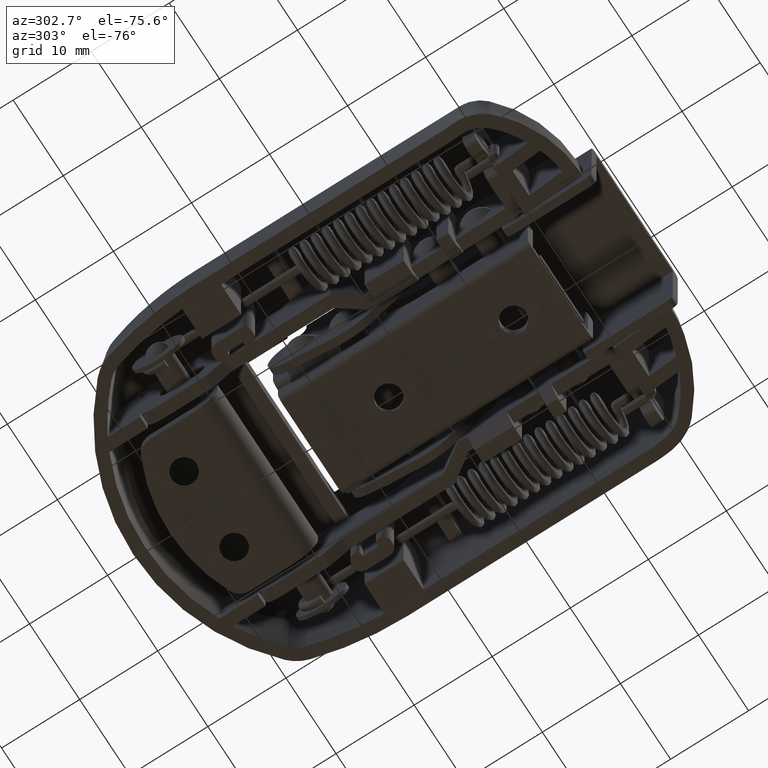
[diagram: clean part render]
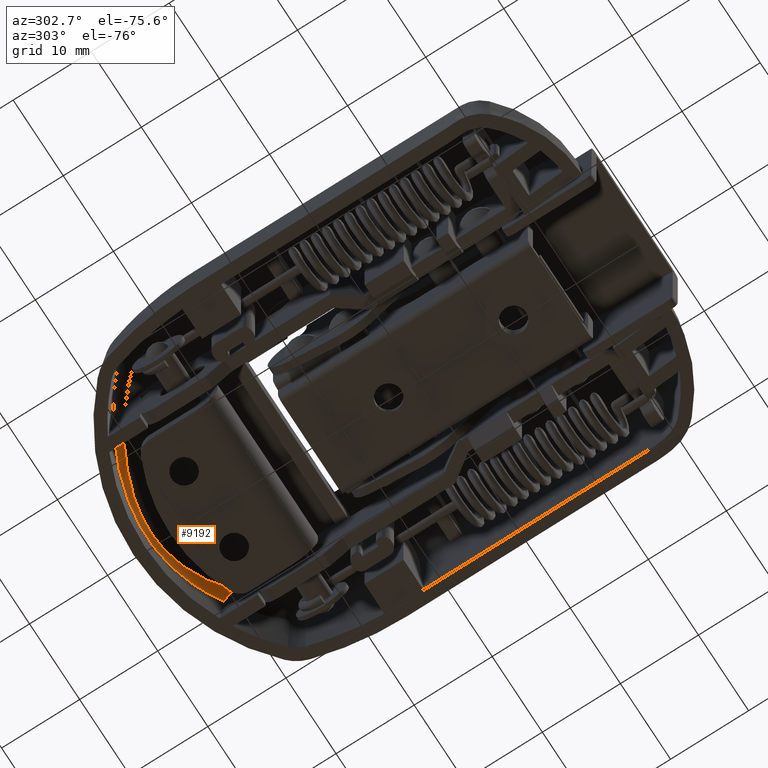
[diagram: same view with one face highlighted and labeled with its STEP entity id]
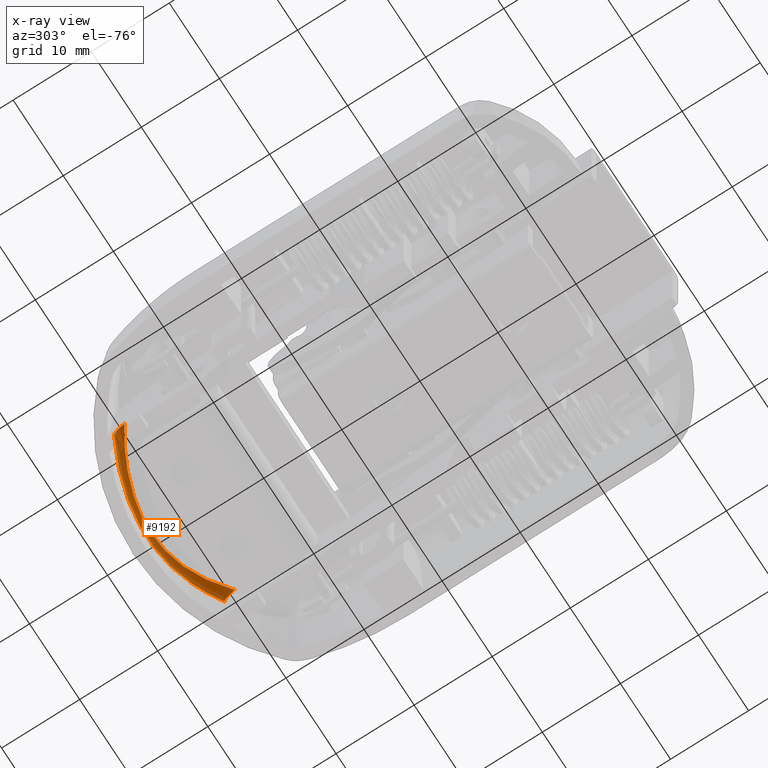
[diagram: x-ray of the same camera — body ghosted, the highlighted face saturated]
A machine part, auxiliary view. The second image highlights one B-rep face of the part: STEP entity #9192.
The next image is the same camera in x-ray: the body ghosted, the highlighted face saturated — about 1% of this face is hidden behind the body in this view.
In plain terms, the highlighted face is a freeform B-spline surface patch.
Its self-contained STEP definition (entity closure, byte-faithful):
#231 = CARTESIAN_POINT ( 'NONE',  ( -7.270980982735626900, 59.15050869956452600, -8.045539297740756300 ) ) ;
#287 = CARTESIAN_POINT ( 'NONE',  ( 0.5218743642224695800, 59.91816782484296800, -9.059311748555972000 ) ) ;
#314 = CARTESIAN_POINT ( 'NONE',  ( -3.906585702392531900, 60.06623565481270800, -9.926526742074838000 ) ) ;
#359 = CARTESIAN_POINT ( 'NONE',  ( 11.00000000000000200, 57.31243456684755700, -6.541334974213405000 ) ) ;
#375 = CARTESIAN_POINT ( 'NONE',  ( -10.61306972115204600, 56.56884765888347700, -5.559508198463396100 ) ) ;
#402 = CARTESIAN_POINT ( 'NONE',  ( 1.026514887088570700, 59.89570203111100000, -9.028745439866241900 ) ) ;
#448 = CARTESIAN_POINT ( 'NONE',  ( -8.892255723528304400, 58.61848155523508600, -8.439931193719054600 ) ) ;
#504 = CARTESIAN_POINT ( 'NONE',  ( 3.740076805229735500, 60.02573388308060500, -9.181711863393683600 ) ) ;
#548 = CARTESIAN_POINT ( 'NONE',  ( 3.432228295030826300, 60.14201421710915700, -10.01585330274831900 ) ) ;
#560 = CARTESIAN_POINT ( 'NONE',  ( -10.99999999999999800, 56.29911971473180200, -5.351454213057219400 ) ) ;
#591 = CARTESIAN_POINT ( 'NONE',  ( 7.600187269600905200, 59.12831898113529400, -8.914791997305059100 ) ) ;
#728 = EDGE_CURVE ( 'NONE', #2612, #17852, #20158, .T. ) ;
#2200 = CARTESIAN_POINT ( 'NONE',  ( -12.33842787173832700, 56.87170163092271500, -7.059679919154015200 ) ) ;
#2259 = CARTESIAN_POINT ( 'NONE',  ( 9.410819536039001700, 57.33364827151172000, -6.198167039632482800 ) ) ;
#2285 = CARTESIAN_POINT ( 'NONE',  ( -5.451607284660392200, 59.07186451616620100, -7.987851965497071700 ) ) ;
#2332 = CARTESIAN_POINT ( 'NONE',  ( 11.00000000000055800, 56.47848897371848400, -5.489810249206502800 ) ) ;
#2348 = CARTESIAN_POINT ( 'NONE',  ( -1.045571550634906100, 59.92387399416514900, -9.067114513104863600 ) ) ;
#2377 = CARTESIAN_POINT ( 'NONE',  ( -2.157167542289998500, 60.25656750359760800, -9.509092032144074800 ) ) ;
#2426 = CARTESIAN_POINT ( 'NONE',  ( 11.00000000000000200, 57.55510123524974400, -7.164092900894720700 ) ) ;
#2468 = CARTESIAN_POINT ( 'NONE',  ( 1.138130795477420900, 60.37091016881561200, -10.29345805061594600 ) ) ;
#2513 = CARTESIAN_POINT ( 'NONE',  ( -6.697307784958028700, 59.41579549317666700, -9.207705909989185100 ) ) ;
#2552 = CARTESIAN_POINT ( 'NONE',  ( 4.017812494141269400, 59.46638355788979200, -8.466845392072246000 ) ) ;
#2598 = CARTESIAN_POINT ( 'NONE',  ( 4.858257828809054300, 59.87859331228295900, -9.711446550446137100 ) ) ;
#2612 = VERTEX_POINT ( 'NONE', #22142 ) ;
#2615 = CARTESIAN_POINT ( 'NONE',  ( -10.99999999999999800, 56.94360027939549700, -5.974575130438419800 ) ) ;
#2649 = CARTESIAN_POINT ( 'NONE',  ( 8.237886098073547100, 58.79920323733949800, -7.634367891429228300 ) ) ;
#4272 = CARTESIAN_POINT ( 'NONE',  ( -11.01496096068613700, 57.52324178733725500, -6.332491646596381000 ) ) ;
#4339 = CARTESIAN_POINT ( 'NONE',  ( 6.865501225361795100, 58.58035950449384200, -7.427918869725302500 ) ) ;
#4369 = CARTESIAN_POINT ( 'NONE',  ( -6.046398258901460200, 59.58925429637583400, -9.393225856330571900 ) ) ;
#4425 = CARTESIAN_POINT ( 'NONE',  ( -3.561094337125323900, 59.56667057569549700, -8.594610733381530900 ) ) ;
#4448 = CARTESIAN_POINT ( 'NONE',  ( -1.026753283651534500, 59.92395018714908900, -9.067218522874185300 ) ) ;
#4486 = CARTESIAN_POINT ( 'NONE',  ( 11.00000000000000000, 57.62837396384011200, -7.613348286697724500 ) ) ;
#4531 = CARTESIAN_POINT ( 'NONE',  ( 1.356635505542658400, 60.29681245811522700, -9.571502791531681700 ) ) ;
#4578 = CARTESIAN_POINT ( 'NONE',  ( -4.849781214768038100, 59.88047339366171700, -9.713558511193166800 ) ) ;
#4618 = CARTESIAN_POINT ( 'NONE',  ( 4.455471641812288800, 59.96379198692259400, -9.807490441475559700 ) ) ;
#4675 = CARTESIAN_POINT ( 'NONE',  ( 6.716008770717152700, 59.41030283997749000, -9.201958056272037100 ) ) ;
#4686 = CARTESIAN_POINT ( 'NONE',  ( -11.00000000000000200, 57.31243456684767800, -6.541334974213598700 ) ) ;
#4719 = CARTESIAN_POINT ( 'NONE',  ( 9.466277309992730000, 57.30308087460389300, -6.170057044037471300 ) ) ;
#6309 = CARTESIAN_POINT ( 'NONE',  ( -9.469222496629385000, 57.30171757742714800, -6.168666141755413600 ) ) ;
#6364 = CARTESIAN_POINT ( 'NONE',  ( 5.022184936507113800, 59.20320717019114200, -8.144231551800402300 ) ) ;
#6384 = CARTESIAN_POINT ( 'NONE',  ( -5.282708282288318500, 59.70791604843437700, -8.750317861546982100 ) ) ;
#6442 = CARTESIAN_POINT ( 'NONE',  ( -5.016437316797253100, 59.20479842558970100, -8.146160923343360900 ) ) ;
#6474 = CARTESIAN_POINT ( 'NONE',  ( -1.138382309197276900, 60.39768089197890800, -10.32673206834520700 ) ) ;
#6519 = CARTESIAN_POINT ( 'NONE',  ( -10.58917813685372200, 57.84434961541455800, -7.780588744817647400 ) ) ;
#6575 = CARTESIAN_POINT ( 'NONE',  ( 2.040789989484543400, 59.81191711300113000, -8.915654760873730200 ) ) ;
#6621 = CARTESIAN_POINT ( 'NONE',  ( -3.416011857280350000, 60.14449983742496600, -10.01879896352762200 ) ) ;
#6662 = CARTESIAN_POINT ( 'NONE',  ( 5.287988713943099700, 59.70669456247073000, -8.748696176367275300 ) ) ;
#6706 = CARTESIAN_POINT ( 'NONE',  ( 9.338253438437103400, 58.44427132092949500, -8.278263810796671500 ) ) ;
#6721 = CARTESIAN_POINT ( 'NONE',  ( -11.00000000000000200, 57.55510123524975800, -7.164092900894771400 ) ) ;
#6748 = CARTESIAN_POINT ( 'NONE',  ( 10.50526274010404600, 57.90628496615524800, -7.821078897819997900 ) ) ;
#6754 = VERTEX_POINT ( 'NONE', #14491 ) ;
#8370 = CARTESIAN_POINT ( 'NONE',  ( -10.50853423620756800, 57.90498769838347200, -7.819875955319416100 ) ) ;
#8429 = CARTESIAN_POINT ( 'NONE',  ( 3.567814254498795600, 59.56521249703881400, -8.592753154688132600 ) ) ;
#8434 = EDGE_LOOP ( 'NONE', ( #10306, #16944, #10427, #18181 ) ) ;
#8460 = CARTESIAN_POINT ( 'NONE',  ( -4.017215671149169300, 59.46645967027925600, -8.466958308391449300 ) ) ;
#8512 = CARTESIAN_POINT ( 'NONE',  ( 11.00000000000055800, 56.29911971473136800, -5.351454213056883600 ) ) ;
#8531 = CARTESIAN_POINT ( 'NONE',  ( -6.852490527715947800, 58.58549006815795200, -7.433538217895243600 ) ) ;
#8556 = CARTESIAN_POINT ( 'NONE',  ( 0.2700971546244501600, 60.33687899515278000, -9.630902730170580700 ) ) ;
#8643 = CARTESIAN_POINT ( 'NONE',  ( 2.262765755627322400, 60.29149603029176100, -10.19564989588792700 ) ) ;
#8690 = CARTESIAN_POINT ( 'NONE',  ( -0.9882218424074964400, 60.39788179542591700, -10.32698235631507100 ) ) ;
#8737 = CARTESIAN_POINT ( 'NONE',  ( 5.460033170432196500, 59.06921277066581400, -7.984729181823151800 ) ) ;
#8779 = CARTESIAN_POINT ( 'NONE',  ( 11.00000000000000000, 57.62837396384011200, -7.613348286697724500 ) ) ;
#8796 = CARTESIAN_POINT ( 'NONE',  ( -10.99999999999999800, 57.62837396384031100, -7.613348286699803700 ) ) ;
#8832 = CARTESIAN_POINT ( 'NONE',  ( 11.00443277835714000, 57.52950410307259700, -6.337814639874396900 ) ) ;
#9192 = ADVANCED_FACE ( 'NONE', ( #16824 ), #19682, .F. ) ;
#10306 = ORIENTED_EDGE ( 'NONE', *, *, #728, .T. ) ;
#10427 = ORIENTED_EDGE ( 'NONE', *, *, #24709, .F. ) ;
#10462 = CARTESIAN_POINT ( 'NONE',  ( -8.228757218440353700, 58.80301350083397700, -7.638471265718481000 ) ) ;
#10523 = CARTESIAN_POINT ( 'NONE',  ( 2.070999990632107000, 59.80853557934983700, -8.911123153178657200 ) ) ;
#10549 = CARTESIAN_POINT ( 'NONE',  ( -4.454809897216132500, 59.96386401320607700, -9.807588098836367500 ) ) ;
#10590 = CARTESIAN_POINT ( 'NONE',  ( 10.99999999999999800, 56.64331356225529400, -5.642053485295198500 ) ) ;
#10607 = CARTESIAN_POINT ( 'NONE',  ( -8.991241971607058400, 57.55097068750095000, -6.405358104243518400 ) ) ;
#10632 = CARTESIAN_POINT ( 'NONE',  ( 0.5135687711001482000, 59.91834956496263900, -9.059560708980692200 ) ) ;
#10721 = CARTESIAN_POINT ( 'NONE',  ( 2.691566182962315900, 60.17891428165844300, -9.398923907239495900 ) ) ;
#10776 = CARTESIAN_POINT ( 'NONE',  ( 0.9978181817406253100, 60.38109660215499700, -10.30597429014540700 ) ) ;
#10789 = CARTESIAN_POINT ( 'NONE',  ( -11.00000000000000200, 56.64331356225562100, -5.642053485295524400 ) ) ;
#10819 = CARTESIAN_POINT ( 'NONE',  ( 6.055749489830072100, 59.58673576065169900, -9.390525070451607400 ) ) ;
#10907 = CARTESIAN_POINT ( 'NONE',  ( 11.11570921546391900, 56.21791813803877600, -5.289177023420451800 ) ) ;
#12365 = CARTESIAN_POINT ( 'NONE',  ( -11.88172943054259200, 57.01234973841670900, -5.895037935102215500 ) ) ;
#12427 = CARTESIAN_POINT ( 'NONE',  ( 11.00000000000055800, 56.29911971473136800, -5.351454213056883600 ) ) ;
#12534 = CARTESIAN_POINT ( 'NONE',  ( -6.840053765497073000, 58.59122799140094900, -7.439553863721275000 ) ) ;
#12548 = B_SPLINE_CURVE_WITH_KNOTS ( 'NONE', 3,
 ( #8512, #2332, #10590, #24992, #12669, #359, #14755, #2426, #16829, #4486 ),
 .UNSPECIFIED., .F., .F.,
 ( 4, 2, 2, 2, 4 ),
 ( 0.0000000000000000000, 0.0006718056609274423700, 0.001343611321854884700, 0.002015416982782327200, 0.002687222643709769500 ),
 .UNSPECIFIED. ) ;
#12594 = CARTESIAN_POINT ( 'NONE',  ( 1.043546045331402300, 59.89475589897836700, -9.027459848543959000 ) ) ;
#12624 = CARTESIAN_POINT ( 'NONE',  ( -3.733499229243761400, 60.02690274763487100, -9.183342166210628900 ) ) ;
#12669 = CARTESIAN_POINT ( 'NONE',  ( 11.00000000000000000, 57.08034774304988400, -6.157141805269847400 ) ) ;
#12690 = CARTESIAN_POINT ( 'NONE',  ( -10.21757650307641900, 56.82649906325646300, -5.770143786709448700 ) ) ;
#12723 = CARTESIAN_POINT ( 'NONE',  ( 0.5694041834058906100, 60.39237352533923100, -10.32010909410797300 ) ) ;
#12764 = CARTESIAN_POINT ( 'NONE',  ( -9.321376909676688500, 58.43718653412620500, -8.277951287003581600 ) ) ;
#12806 = CARTESIAN_POINT ( 'NONE',  ( 3.529198064944132800, 59.57305205441170400, -8.602798242053049500 ) ) ;
#12851 = CARTESIAN_POINT ( 'NONE',  ( 2.467583519160196900, 60.26823523983736700, -10.16710238277648200 ) ) ;
#12899 = CARTESIAN_POINT ( 'NONE',  ( 7.283136609804442300, 59.14651283431821600, -8.040722003396318500 ) ) ;
#12990 = CARTESIAN_POINT ( 'NONE',  ( 12.33948593840261800, 56.87106019196519900, -7.059236717440434500 ) ) ;
#13575 = VERTEX_POINT ( 'NONE', #16117 ) ;
#14198 = B_SPLINE_CURVE_WITH_KNOTS ( 'NONE', 3,
 ( #12427, #16586, #2259, #16674, #4339, #18729, #6364, #20800, #8429, #22845, #10523, #24917, #12594, #287, #14681, #2348, #16755, #4425, #18821, #6442, #20876, #8531, #22930, #10607, #25009, #12690, #375, #14767 ),
 .UNSPECIFIED., .F., .F.,
 ( 4, 2, 2, 2, 2, 2, 2, 2, 2, 2, 2, 2, 2, 4 ),
 ( 0.006351380777626272600, 0.009451256645767800200, 0.01255113251390932800, 0.01410107044798009400, 0.01565100838205085700, 0.01720094631612162400, 0.01797591528315700700, 0.01875088425019239000, 0.02185076011833392300, 0.02340069805240468600, 0.02495063598647544900, 0.02805051185461698800, 0.02960044978868775500, 0.03115038772275852100 ),
 .UNSPECIFIED. ) ;
#14491 = CARTESIAN_POINT ( 'NONE',  ( 11.00000000000000000, 57.62837396384011200, -7.613348286697724500 ) ) ;
#14616 = CARTESIAN_POINT ( 'NONE',  ( -7.587603544291273900, 59.13256046045902500, -8.919022093242050500 ) ) ;
#14681 = CARTESIAN_POINT ( 'NONE',  ( 0.2582849698172149900, 59.92405981895233000, -9.067368179423223000 ) ) ;
#14706 = CARTESIAN_POINT ( 'NONE',  ( -2.034281080125170900, 59.83385260180791900, -8.941642730220722900 ) ) ;
#14755 = CARTESIAN_POINT ( 'NONE',  ( 11.00000000000000000, 57.40818662608384000, -6.742372106739042100 ) ) ;
#14767 = CARTESIAN_POINT ( 'NONE',  ( -10.99999999999999800, 56.29911971473180200, -5.351454213057219400 ) ) ;
#14794 = CARTESIAN_POINT ( 'NONE',  ( 1.086803473109395400, 60.31178803157269600, -9.593668350809460700 ) ) ;
#14838 = CARTESIAN_POINT ( 'NONE',  ( -7.588362195841710900, 59.12588061056102600, -8.911672659451266300 ) ) ;
#14885 = CARTESIAN_POINT ( 'NONE',  ( 3.913463502625782900, 60.06498537257226600, -9.925071285076722200 ) ) ;
#14928 = CARTESIAN_POINT ( 'NONE',  ( 3.910176029225397500, 60.06389594633540700, -9.923627029576032000 ) ) ;
#14981 = CARTESIAN_POINT ( 'NONE',  ( 7.740890923628297700, 58.19996900474235000, -7.023330957211588700 ) ) ;
#16117 = CARTESIAN_POINT ( 'NONE',  ( 11.00000000000055800, 56.29911971473136800, -5.351454213056883600 ) ) ;
#16202 = B_SPLINE_CURVE_WITH_KNOTS ( 'NONE', 3,
 ( #20945, #6519, #25076, #12764, #448, #14838, #2513, #16920, #4578, #18981, #6621, #21036, #8690, #23101, #10776, #25165, #12851, #548, #14928, #2598, #17012, #4675, #19079, #6706, #21133, #8779 ),
 .UNSPECIFIED., .F., .F.,
 ( 4, 2, 2, 2, 2, 2, 2, 2, 2, 2, 2, 2, 4 ),
 ( 0.007961035392188372000, 0.009429425853754117700, 0.01089781631531986500, 0.01383459723845136000, 0.01530298770001710700, 0.01677137816158285500, 0.01970815908471435300, 0.02117654954628010000, 0.02264494000784585100, 0.02411333046941160200, 0.02558172093097735300, 0.02851850185410885500, 0.03145528277724035000 ),
 .UNSPECIFIED. ) ;
#16523 = CARTESIAN_POINT ( 'NONE',  ( -11.11475797272753900, 56.21859011952459900, -5.289689475401780200 ) ) ;
#16586 = CARTESIAN_POINT ( 'NONE',  ( 10.21896191573299500, 56.84357903541548800, -5.771421569113139000 ) ) ;
#16611 = CARTESIAN_POINT ( 'NONE',  ( -10.31219632032197200, 56.78550855032940300, -5.722041022010405900 ) ) ;
#16674 = CARTESIAN_POINT ( 'NONE',  ( 7.734615455005758200, 58.20142642143834900, -7.025724945469962200 ) ) ;
#16698 = CARTESIAN_POINT ( 'NONE',  ( -5.784822770980260200, 59.58014931658139100, -8.583548799222152000 ) ) ;
#16755 = CARTESIAN_POINT ( 'NONE',  ( -2.063812269728856600, 59.83071539524196000, -8.937312044487145000 ) ) ;
#16784 = CARTESIAN_POINT ( 'NONE',  ( -2.255460356659974700, 60.31232760106812700, -10.21812597703927800 ) ) ;
#16824 = FACE_OUTER_BOUND ( 'NONE', #8434, .T. ) ;
#16829 = CARTESIAN_POINT ( 'NONE',  ( 11.00000000000000000, 57.60636212948077900, -7.387070933545846400 ) ) ;
#16872 = CARTESIAN_POINT ( 'NONE',  ( 1.281289618659924500, 59.87879510796611300, -9.005780808952241800 ) ) ;
#16920 = CARTESIAN_POINT ( 'NONE',  ( -5.317153098796277200, 59.77394526610450500, -9.594354421749924800 ) ) ;
#16944 = ORIENTED_EDGE ( 'NONE', *, *, #19340, .T. ) ;
#16967 = CARTESIAN_POINT ( 'NONE',  ( 4.259257040478043900, 59.93095069469761400, -9.049753033712544700 ) ) ;
#17012 = CARTESIAN_POINT ( 'NONE',  ( 5.329907049575616900, 59.77094790471012000, -9.591029778693172900 ) ) ;
#17025 = CARTESIAN_POINT ( 'NONE',  ( -11.00000000000000000, 57.08034774305006200, -6.157141805270108600 ) ) ;
#17054 = CARTESIAN_POINT ( 'NONE',  ( 8.588068291508063700, 58.76044877478950900, -8.559045524657113500 ) ) ;
#17852 = VERTEX_POINT ( 'NONE', #18393 ) ;
#18017 = EDGE_CURVE ( 'NONE', #13575, #2612, #14198, .T. ) ;
#18181 = ORIENTED_EDGE ( 'NONE', *, *, #18017, .T. ) ;
#18393 = CARTESIAN_POINT ( 'NONE',  ( -10.99999999999999800, 57.62837396384031100, -7.613348286699803700 ) ) ;
#18672 = CARTESIAN_POINT ( 'NONE',  ( -11.44573228674447100, 57.41285678325624500, -7.433608496840766300 ) ) ;
#18729 = CARTESIAN_POINT ( 'NONE',  ( 5.492737481026699300, 59.05859680661515700, -7.972356719481322100 ) ) ;
#18756 = CARTESIAN_POINT ( 'NONE',  ( -4.980357692683822000, 59.21533029334651800, -8.158805351517020900 ) ) ;
#18821 = CARTESIAN_POINT ( 'NONE',  ( -4.057018523657281300, 59.45712041851588500, -8.455240653377011000 ) ) ;
#18851 = CARTESIAN_POINT ( 'NONE',  ( -1.086927710000565200, 60.33679865836391800, -9.630783250941148000 ) ) ;
#18939 = CARTESIAN_POINT ( 'NONE',  ( 1.420617522399525000, 60.35488682335920900, -10.27359674811586900 ) ) ;
#18981 = CARTESIAN_POINT ( 'NONE',  ( -3.897773043351242500, 60.06609183130702700, -9.926183153731670900 ) ) ;
#19031 = CARTESIAN_POINT ( 'NONE',  ( 4.985309247322231100, 59.21395926608481400, -8.157142640543581200 ) ) ;
#19079 = CARTESIAN_POINT ( 'NONE',  ( 7.606603927304162100, 59.11942493344871300, -8.905375556503349400 ) ) ;
#19091 = CARTESIAN_POINT ( 'NONE',  ( -11.00000000000000000, 57.40818662608390400, -6.742372106739192200 ) ) ;
#19121 = CARTESIAN_POINT ( 'NONE',  ( 10.09671370629556900, 57.99289417766733800, -6.784625401632795600 ) ) ;
#19340 = EDGE_CURVE ( 'NONE', #17852, #6754, #16202, .T. ) ;
#19682 =( BOUNDED_SURFACE ( )  B_SPLINE_SURFACE ( 3, 2, ( 
 ( #16523, #12365, #2200 ),
 ( #16611, #4272, #18672 ),
 ( #6309, #20732, #8370 ),
 ( #22789, #10462, #24856 ),
 ( #12534, #231, #14616 ),
 ( #2285, #16698, #4369 ),
 ( #18756, #6384, #20825 ),
 ( #8460, #22868, #10549 ),
 ( #24946, #12624, #314 ),
 ( #14706, #2377, #16784 ),
 ( #4448, #18851, #6474 ),
 ( #20901, #8556, #22958 ),
 ( #10632, #25036, #12723 ),
 ( #402, #14794, #2468 ),
 ( #16872, #4531, #18939 ),
 ( #6575, #20992, #8643 ),
 ( #23055, #10721, #25117 ),
 ( #12806, #504, #14885 ),
 ( #2552, #16967, #4618 ),
 ( #19031, #6662, #21090 ),
 ( #8737, #23144, #10819 ),
 ( #25216, #12899, #591 ),
 ( #14981, #2649, #17054 ),
 ( #4719, #19121, #6748 ),
 ( #21175, #8832, #23238 ),
 ( #10907, #25323, #12990 ) ),
 .UNSPECIFIED., .F., .F., .F. ) 
 B_SPLINE_SURFACE_WITH_KNOTS ( ( 4, 2, 2, 2, 2, 2, 2, 2, 2, 2, 2, 2, 4 ),
 ( 3, 3 ),
 ( 0.005768236531041569600, 0.008806598047500620300, 0.01184495956395966900, 0.01336414032218919600, 0.01488332108041872000, 0.01792168259687777100, 0.01868127297599253200, 0.01944086335510729300, 0.02096004411333682000, 0.02247922487156634600, 0.02399840562979586900, 0.02703676714625492100, 0.03007512866271397000 ),
 ( 0.0000000000000000000, 1.000000000000000000 ),
 .UNSPECIFIED. ) 
 GEOMETRIC_REPRESENTATION_ITEM ( )  RATIONAL_B_SPLINE_SURFACE ( (
 ( 1.000000000000000000, 0.8931564512661813700, 1.000000000000000000),
 ( 1.000000000000000000, 0.9034869895768959900, 1.000000000000000000),
 ( 1.000000000000000000, 0.9131125129538577600, 1.000000000000000000),
 ( 1.000000000000000000, 0.9301241411778238300, 1.000000000000000000),
 ( 1.000000000000000000, 0.9375139437400528100, 1.000000000000000000),
 ( 1.000000000000000000, 0.9467197609626406600, 1.000000000000000000),
 ( 1.000000000000000000, 0.9494743241167351600, 1.000000000000000000),
 ( 1.000000000000000000, 0.9543000151081109100, 1.000000000000000000),
 ( 1.000000000000000000, 0.9563759578727458700, 1.000000000000000000),
 ( 1.000000000000000000, 0.9613684857927197200, 1.000000000000000000),
 ( 1.000000000000000000, 0.9631027959341507100, 1.000000000000000000),
 ( 1.000000000000000000, 0.9631045423109168000, 1.000000000000000000),
 ( 1.000000000000000000, 0.9629950197037631100, 1.000000000000000000),
 ( 1.000000000000000000, 0.9625591901991663600, 1.000000000000000000),
 ( 1.000000000000000000, 0.9622338292793288800, 1.000000000000000000),
 ( 1.000000000000000000, 0.9609468011069294300, 1.000000000000000000),
 ( 1.000000000000000000, 0.9596746874165107400, 1.000000000000000000),
 ( 1.000000000000000000, 0.9563506051794898900, 1.000000000000000000),
 ( 1.000000000000000000, 0.9542985427223041900, 1.000000000000000000),
 ( 1.000000000000000000, 0.9494479883875249800, 1.000000000000000000),
 ( 1.000000000000000000, 0.9466688767565524200, 1.000000000000000000),
 ( 1.000000000000000000, 0.9374286831166399600, 1.000000000000000000),
 ( 1.000000000000000000, 0.9300429578902957900, 1.000000000000000000),
 ( 1.000000000000000000, 0.9131384303767218200, 1.000000000000000000),
 ( 1.000000000000000000, 0.9036097840794171700, 1.000000000000000000),
 ( 1.000000000000000000, 0.8931442138734836400, 1.000000000000000000) ) ) 
 REPRESENTATION_ITEM ( '' )  SURFACE ( )  );
#20158 = B_SPLINE_CURVE_WITH_KNOTS ( 'NONE', 3,
 ( #560, #25186, #10789, #2615, #17025, #4686, #19091, #6721, #21145, #8796 ),
 .UNSPECIFIED., .F., .F.,
 ( 4, 2, 2, 2, 4 ),
 ( 0.0000000000000000000, 0.0006718056609273067400, 0.001343611321854613500, 0.002015416982781920000, 0.002687222643709226900 ),
 .UNSPECIFIED. ) ;
#20732 = CARTESIAN_POINT ( 'NONE',  ( -10.09998698920835900, 57.99162620627888000, -6.783199918387198900 ) ) ;
#20800 = CARTESIAN_POINT ( 'NONE',  ( 4.056806765114065300, 59.45725531663632100, -8.455386185485242100 ) ) ;
#20825 = CARTESIAN_POINT ( 'NONE',  ( -5.523427042106702000, 59.72549032838740900, -9.541077433832667200 ) ) ;
#20876 = CARTESIAN_POINT ( 'NONE',  ( -5.483170712864024100, 59.06162536198254300, -7.975917178115892600 ) ) ;
#20901 = CARTESIAN_POINT ( 'NONE',  ( 0.2551445148848922000, 59.92404093752937700, -9.067342404708242000 ) ) ;
#20945 = CARTESIAN_POINT ( 'NONE',  ( -10.99999999999999800, 57.62837396384031100, -7.613348286699803700 ) ) ;
#20992 = CARTESIAN_POINT ( 'NONE',  ( 2.161407766575450300, 60.23755936095359000, -9.484464047958310200 ) ) ;
#21036 = CARTESIAN_POINT ( 'NONE',  ( -1.966268427766010700, 60.33308369694219000, -10.24487691901734500 ) ) ;
#21090 = CARTESIAN_POINT ( 'NONE',  ( 5.528921288789630000, 59.72418871877044900, -9.539639413534969100 ) ) ;
#21133 = CARTESIAN_POINT ( 'NONE',  ( 10.17918049272369200, 58.05989196181459300, -7.947493673650853900 ) ) ;
#21145 = CARTESIAN_POINT ( 'NONE',  ( -11.00000000000000000, 57.60636212948079300, -7.387070933545898800 ) ) ;
#21175 = CARTESIAN_POINT ( 'NONE',  ( 10.30231361621330600, 56.79255245135139100, -5.727371453216240300 ) ) ;
#22142 = CARTESIAN_POINT ( 'NONE',  ( -10.99999999999999800, 56.29911971473180200, -5.351454213057219400 ) ) ;
#22789 = CARTESIAN_POINT ( 'NONE',  ( -7.732303966554674400, 58.20426445426436900, -7.027511731558451700 ) ) ;
#22845 = CARTESIAN_POINT ( 'NONE',  ( 2.574914716533631700, 59.74085070023463800, -8.820643296362449700 ) ) ;
#22868 = CARTESIAN_POINT ( 'NONE',  ( -4.258612755454034700, 59.93102070584652100, -9.049865155654984500 ) ) ;
#22930 = CARTESIAN_POINT ( 'NONE',  ( -7.724689097741527500, 58.20635339618266400, -7.030541882383974300 ) ) ;
#22958 = CARTESIAN_POINT ( 'NONE',  ( 0.2828839280657689000, 60.39776689315606000, -10.32683920935854400 ) ) ;
#23055 = CARTESIAN_POINT ( 'NONE',  ( 2.540690168453013400, 59.74581908169832900, -8.827226230619198000 ) ) ;
#23101 = CARTESIAN_POINT ( 'NONE',  ( 0.4986401496837109000, 60.39768340164120300, -10.32673519454742600 ) ) ;
#23144 = CARTESIAN_POINT ( 'NONE',  ( 5.793808840874841200, 59.57778640225042500, -8.580498961149203300 ) ) ;
#23238 = CARTESIAN_POINT ( 'NONE',  ( 11.43470437032425800, 57.41960225597711100, -7.438233282922635900 ) ) ;
#24709 = EDGE_CURVE ( 'NONE', #13575, #6754, #12548, .T. ) ;
#24856 = CARTESIAN_POINT ( 'NONE',  ( -8.578527843206970300, 58.76453851483890400, -8.562661329484011900 ) ) ;
#24917 = CARTESIAN_POINT ( 'NONE',  ( 1.302045521970879100, 59.87730347749364800, -9.003758816269742800 ) ) ;
#24946 = CARTESIAN_POINT ( 'NONE',  ( -3.522997657944782800, 59.57437001908319700, -8.604481114209424000 ) ) ;
#24992 = CARTESIAN_POINT ( 'NONE',  ( 10.99999999999999800, 56.94360027939527000, -5.974575130438125800 ) ) ;
#25009 = CARTESIAN_POINT ( 'NONE',  ( -9.407196507545037900, 57.31732027485827500, -6.192809511320013400 ) ) ;
#25036 = CARTESIAN_POINT ( 'NONE',  ( 0.5437279181322393100, 60.33183868699115500, -9.623395051925918200 ) ) ;
#25076 = CARTESIAN_POINT ( 'NONE',  ( -10.16978602557438200, 58.05019493522957000, -7.948314341276979000 ) ) ;
#25117 = CARTESIAN_POINT ( 'NONE',  ( 2.817114247784830100, 60.22883738948639400, -10.11917116673936300 ) ) ;
#25165 = CARTESIAN_POINT ( 'NONE',  ( 1.980882890752206700, 60.31633716385412200, -10.22610180518625500 ) ) ;
#25186 = CARTESIAN_POINT ( 'NONE',  ( -11.00000000000000000, 56.47848897371885400, -5.489810249206834100 ) ) ;
#25216 = CARTESIAN_POINT ( 'NONE',  ( 6.851387158630474000, 58.58676652910136800, -7.434662815296863200 ) ) ;
#25323 = CARTESIAN_POINT ( 'NONE',  ( 11.88276864760750200, 57.01173716783461700, -5.894513441841397100 ) ) ;